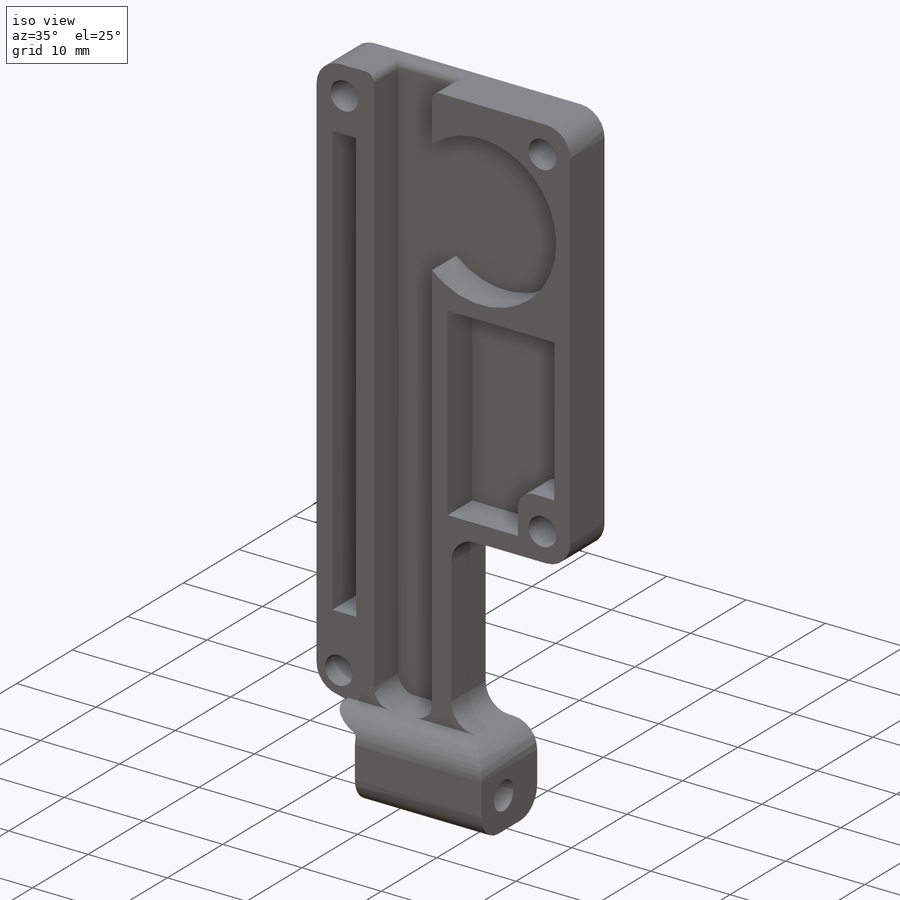
[diagram: iso view]
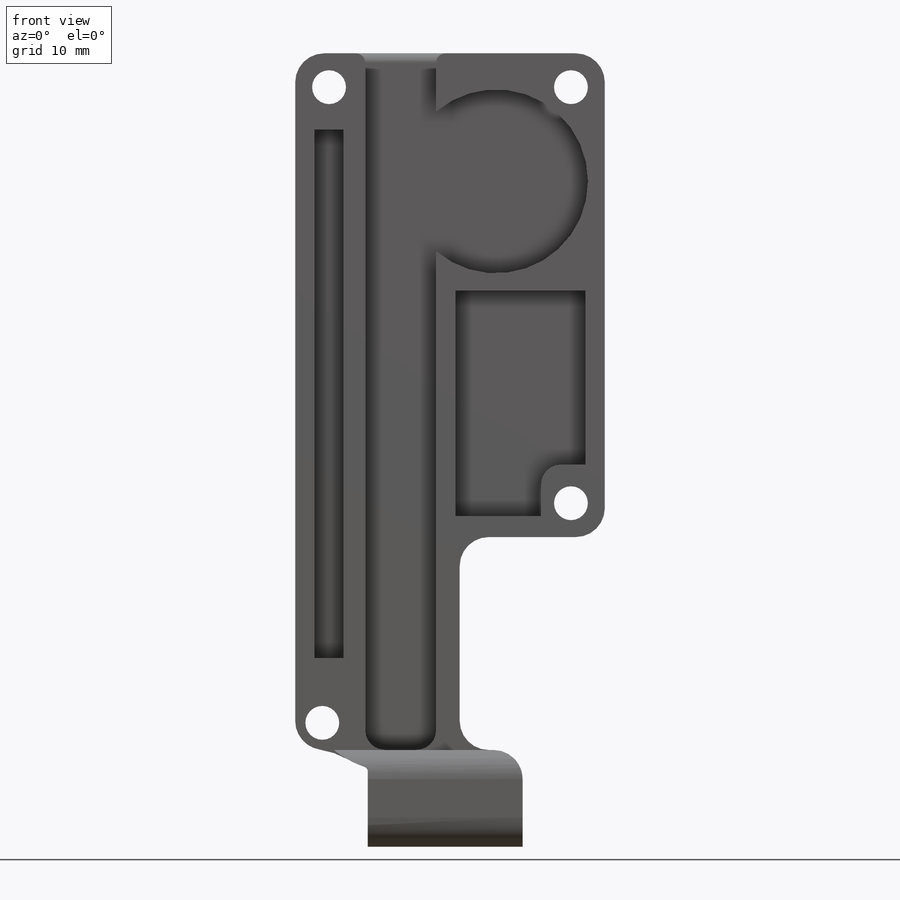
[diagram: front view]
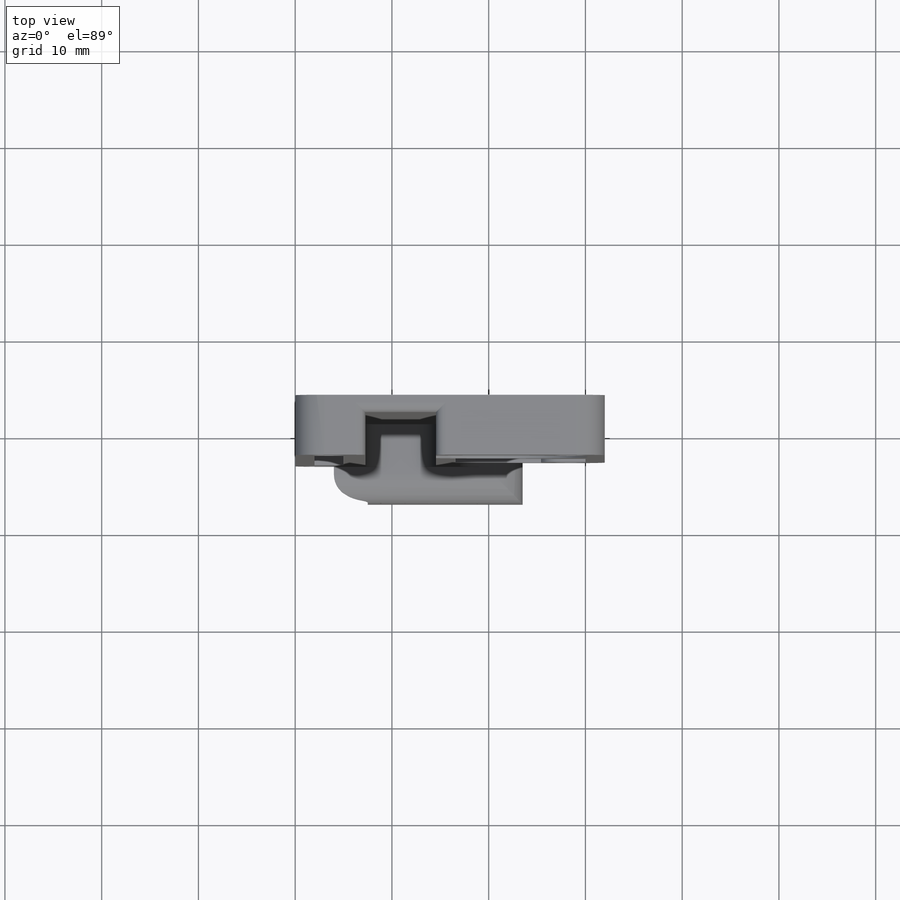
[diagram: top view]
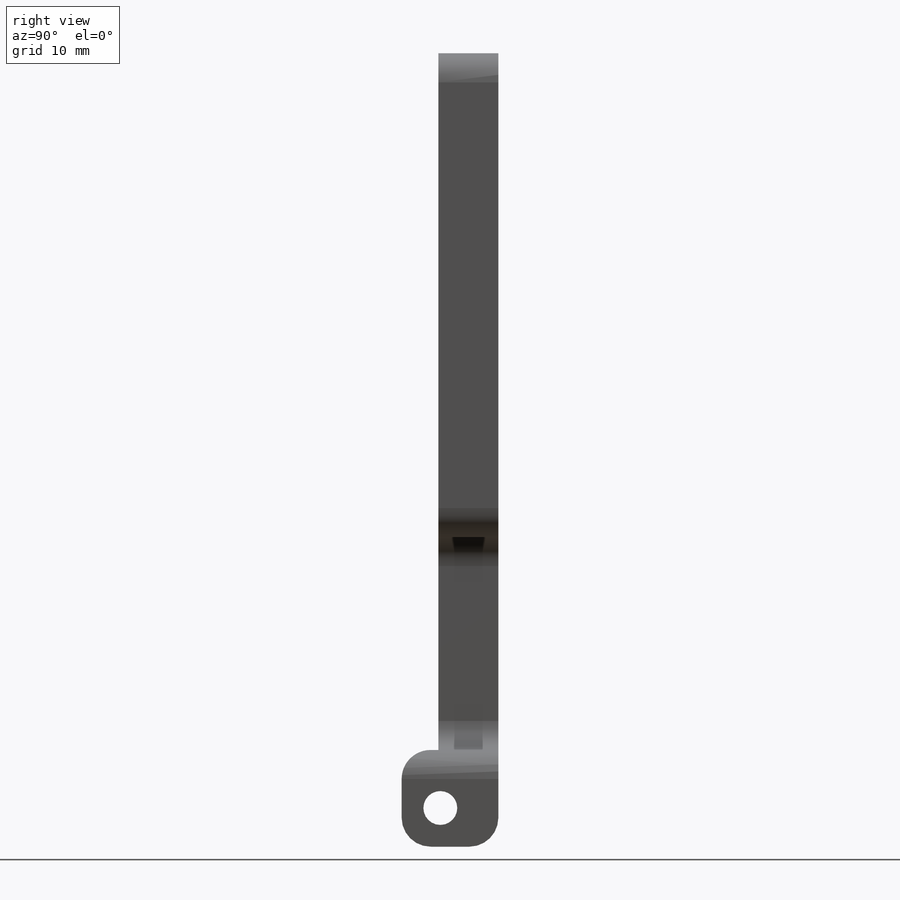
[diagram: right view]
SOLIDWORKS PART (.sldprt)
format: sldprt  version: not decoded by parser v0  size: 435,712 bytes
history: native  units: mm
features: fillet x14, sketch x9, cut_extrude x7, plane x3, extrude x2, material x1 (+10 scaffold rows collapsed)
feature tree (46):
  scaffold x10  (default folders/planes/origin — collapsed)
  material  "Material <nicht angegeben>"
  plane  "Ebene vorne"
  plane  "Ebene oben"
  plane  "Ebene rechts"
  sketch  "body_sketch"  dims[D1=72.0mm D2=32.0mm D3=50.0mm D4=17.0mm]
  extrude  "body"  Depth=6.2mm
  sketch  "channel"  dims[c1.D1=6.1mm c1.D2=72.0mm c1.D3=~6.20205mm c2.D2=7.3mm]
  cut_extrude  "pigionchannel"  Depth=4.4mm
  sketch  "Skizze2"  dims[c1.D1=~3.215791mm c1.D5=3.5mm c1.D6=3.5mm c1.D8=3.5mm c2.D1=3.5mm c2.D2=3.5mm c2.D3=3.5mm c2.D4=3.5mm c2.D7=3.5mm c2.D9=2.8mm c2.D10=2.8mm]
  cut_extrude  "screws"  [1 undecoded]
  fillet  "Verrundung1"  Radius=3mm
  fillet  "Verrundung2"  Radius=1mm
  fillet  "Verrundung3"  Radius=3mm
  sketch  "Skizze6"  dims[c1.D1=~7.762182mm c1.D2=~15.767437mm c2.D1=19.5mm c2.D2=10.0mm c2.D3=4.0mm]
  extrude  "handle"  Depth=10mm
  sketch  "Skizze7"  dims[D1=3.5mm D2=4.0mm D3=4.0mm]
  cut_extrude  "Schnitt-Linear austragen3"  [1 undecoded]
  sketch  "Skizze8"  dims[D1=~8.274087mm D2=10.0mm]
  cut_extrude  "Schnitt-Linear austragen4"  Depth=3.5mm
  fillet  "Verrundung7"  Radius=3mm
  fillet  "Verrundung8"  Radius=3mm
  fillet  "Verrundung12"  Radius=3mm
  fillet  "Verrundung13"  Radius=3mm
  fillet  "Verrundung14"  Radius=3mm
  fillet  "Verrundung16"  Radius=2mm
  sketch  "Skizze9"  dims[D1=19.0mm D2=13.25mm D3=11.25mm]
  cut_extrude  "gear cage"  Depth=4.4mm
  sketch  "Skizze10"  dims[c1.D1=~1.652033mm c1.D2=~13.604976mm c2.D1=2.0mm c2.D2=2.0mm c2.D3=18.0mm c2.D4=~5.653004mm]
  cut_extrude  "Schnitt-Linear austragen6"  Depth=4.4mm
  fillet  "Verrundung17"  Radius=2mm
  sketch  "Skizze11"  dims[c1.D1=~54.597022mm c1.D2=~2.682072mm c2.D1=2.0mm c2.D2=2.25mm]
  cut_extrude  "Schnitt-Linear austragen7"  Depth=4.4mm
  fillet  "Verrundung18"  Radius=3mm
  fillet  "Verrundung19"  Radius=0.5mm
  fillet  "Verrundung20"  Radius=10mm
  fillet  "Verrundung22"  Radius=8mm
decode coverage: 30 of 32 modeling features carry decoded parameters
note: ~ marks probable driven/reference dimensions
note: 2 parameter values undecoded
note: suppression state not decoded; provenance and decode notes live in map.json
